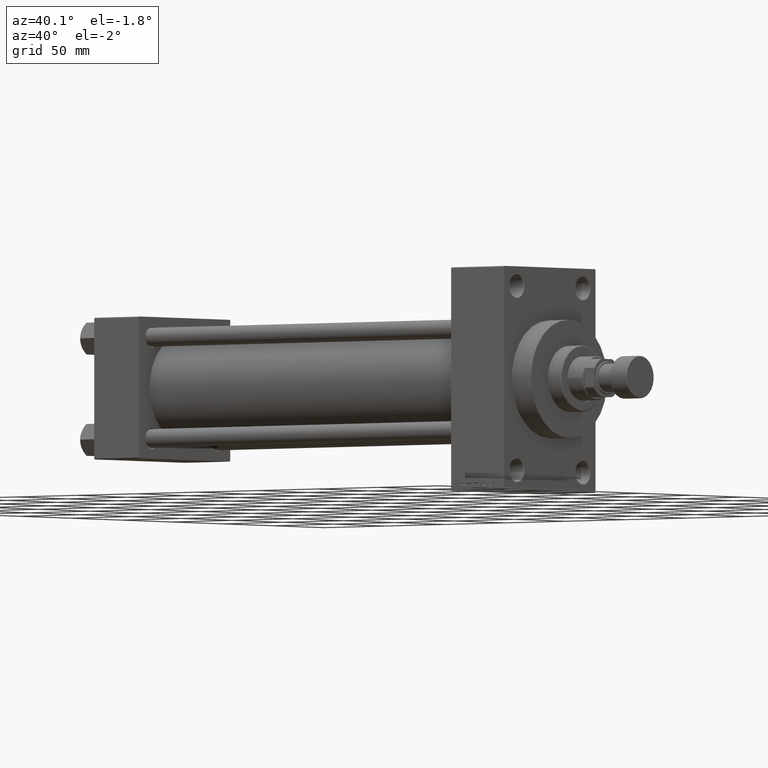
[diagram: clean part render]
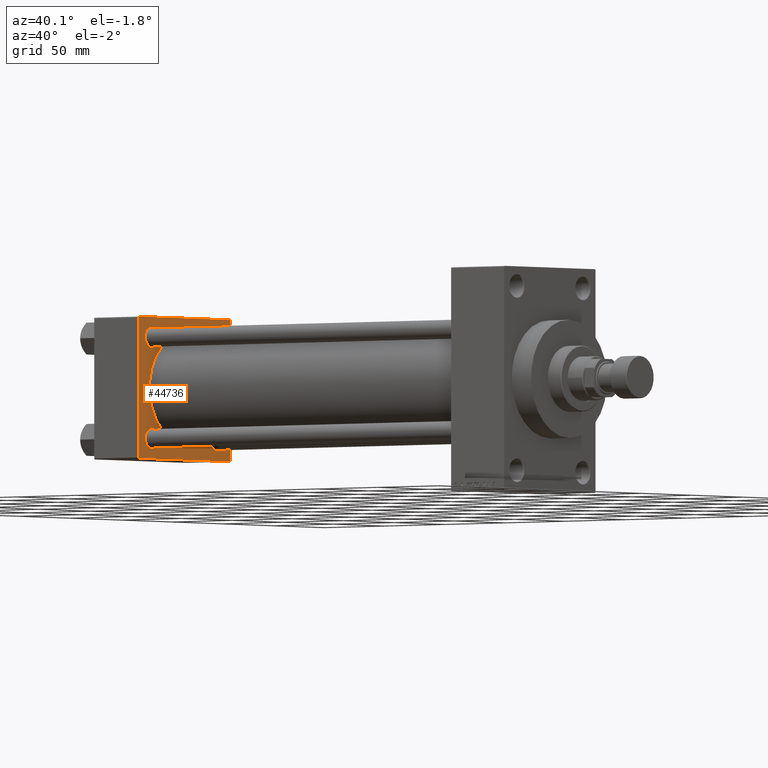
[diagram: same view with one face highlighted and labeled with its STEP entity id]
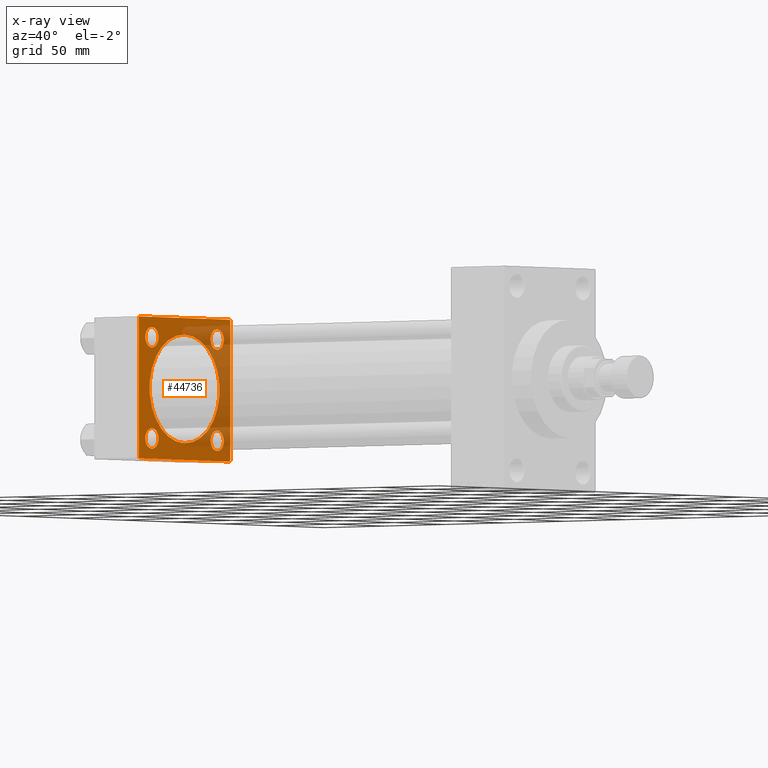
[diagram: x-ray of the same camera — body ghosted, the highlighted face saturated]
A machine part, auxiliary view. The second image highlights one B-rep face of the part: STEP entity #44736.
The next image is the same camera in x-ray: the body ghosted, the highlighted face saturated — about 35% of this face is hidden behind the body in this view.
In plain terms, the highlighted planar face has unit normal (-1, 0, 0).
Its self-contained STEP definition (entity closure, byte-faithful):
#347 = CIRCLE ( 'NONE', #12316, 6.500000000000061284 ) ;
#395 = DIRECTION ( 'NONE',  ( 0.000000000000000000, 0.000000000000000000, 1.000000000000000000 ) ) ;
#661 = VERTEX_POINT ( 'NONE', #11232 ) ;
#864 = AXIS2_PLACEMENT_3D ( 'NONE', #4917, #4163, #395 ) ;
#1032 = CARTESIAN_POINT ( 'NONE',  ( 37.00000000000000000, 32.14999999999999147, 38.65000000000006963 ) ) ;
#1181 = EDGE_LOOP ( 'NONE', ( #41799, #31450 ) ) ;
#1231 = EDGE_CURVE ( 'NONE', #661, #21011, #20126, .T. ) ;
#1339 = EDGE_LOOP ( 'NONE', ( #36625, #13456, #7248, #29883, #11961, #2124, #30866, #2922 ) ) ;
#1925 = DIRECTION ( 'NONE',  ( -1.000000000000000000, 0.000000000000000000, -0.000000000000000000 ) ) ;
#2124 = ORIENTED_EDGE ( 'NONE', *, *, #1231, .T. ) ;
#2215 = FACE_BOUND ( 'NONE', #1181, .T. ) ;
#2452 = DIRECTION ( 'NONE',  ( 0.000000000000000000, 0.000000000000000000, 1.000000000000000000 ) ) ;
#2530 = CARTESIAN_POINT ( 'NONE',  ( 37.00000000000000000, 44.99999999999998579, -44.99999999999998579 ) ) ;
#2835 = VERTEX_POINT ( 'NONE', #42251 ) ;
#2877 = CARTESIAN_POINT ( 'NONE',  ( 37.00000000000000000, -32.14999999999997726, -32.15000000000001279 ) ) ;
#2922 = ORIENTED_EDGE ( 'NONE', *, *, #21064, .T. ) ;
#3206 = DIRECTION ( 'NONE',  ( -1.000000000000000000, 0.000000000000000000, -0.000000000000000000 ) ) ;
#3208 = VECTOR ( 'NONE', #24857, 1000.000000000000000 ) ;
#4163 = DIRECTION ( 'NONE',  ( -1.000000000000000000, 0.000000000000000000, -0.000000000000000000 ) ) ;
#4171 = CARTESIAN_POINT ( 'NONE',  ( 37.00000000000000000, -32.14999999999997726, 32.15000000000001279 ) ) ;
#4537 = VECTOR ( 'NONE', #44574, 1000.000000000000000 ) ;
#4917 = CARTESIAN_POINT ( 'NONE',  ( 37.00000000000000000, 32.14999999999999147, 32.15000000000000568 ) ) ;
#5217 = CARTESIAN_POINT ( 'NONE',  ( 37.00000000000000000, 44.99999999999998579, -44.49999999999998579 ) ) ;
#5374 = AXIS2_PLACEMENT_3D ( 'NONE', #9165, #29050, #33082 ) ;
#5867 = CARTESIAN_POINT ( 'NONE',  ( 36.99999999999997868, -2.602085213965210642E-15, 34.50000000000000000 ) ) ;
#5950 = CARTESIAN_POINT ( 'NONE',  ( 37.00000000000000000, -44.49999999999998579, -45.00000000000000000 ) ) ;
#6861 = VERTEX_POINT ( 'NONE', #40498 ) ;
#6996 = VERTEX_POINT ( 'NONE', #16049 ) ;
#7248 = ORIENTED_EDGE ( 'NONE', *, *, #17431, .F. ) ;
#8180 = ORIENTED_EDGE ( 'NONE', *, *, #48417, .T. ) ;
#8703 = DIRECTION ( 'NONE',  ( 0.000000000000000000, -1.000000000000000000, -1.541976423090495387E-16 ) ) ;
#9165 = CARTESIAN_POINT ( 'NONE',  ( 37.00000000000000000, 32.14999999999999147, 32.15000000000000568 ) ) ;
#9284 = CARTESIAN_POINT ( 'NONE',  ( 37.00000000000000000, -32.14999999999997726, -25.64999999999994884 ) ) ;
#9686 = VERTEX_POINT ( 'NONE', #13573 ) ;
#10001 = CIRCLE ( 'NONE', #25322, 6.500000000000061284 ) ;
#10003 = FACE_BOUND ( 'NONE', #13735, .T. ) ;
#10052 = CARTESIAN_POINT ( 'NONE',  ( 37.00000000000000000, -32.14999999999997726, -32.15000000000001279 ) ) ;
#10084 = LINE ( 'NONE', #2530, #4537 ) ;
#10438 = DIRECTION ( 'NONE',  ( 0.000000000000000000, 0.000000000000000000, 1.000000000000000000 ) ) ;
#10458 = EDGE_CURVE ( 'NONE', #2835, #10953, #10084, .T. ) ;
#10880 = DIRECTION ( 'NONE',  ( 0.000000000000000000, -0.7071067811865474617, 0.7071067811865474617 ) ) ;
#10900 = DIRECTION ( 'NONE',  ( 1.000000000000000000, -0.000000000000000000, 0.000000000000000000 ) ) ;
#10953 = VERTEX_POINT ( 'NONE', #11487 ) ;
#11135 = CARTESIAN_POINT ( 'NONE',  ( 37.00000000000000000, 44.49999999999998579, 45.00000000000001421 ) ) ;
#11225 = VERTEX_POINT ( 'NONE', #5867 ) ;
#11232 = CARTESIAN_POINT ( 'NONE',  ( 37.00000000000000000, -44.49999999999995737, 45.00000000000000000 ) ) ;
#11333 = CIRCLE ( 'NONE', #13744, 6.500000000000061284 ) ;
#11403 = CIRCLE ( 'NONE', #27524, 34.50000000000000000 ) ;
#11487 = CARTESIAN_POINT ( 'NONE',  ( 37.00000000000000000, -44.49999999999995737, -45.00000000000000000 ) ) ;
#11961 = ORIENTED_EDGE ( 'NONE', *, *, #25162, .T. ) ;
#11980 = DIRECTION ( 'NONE',  ( -1.000000000000000000, 0.000000000000000000, -0.000000000000000000 ) ) ;
#12316 = AXIS2_PLACEMENT_3D ( 'NONE', #20576, #1925, #20818 ) ;
#13136 = VECTOR ( 'NONE', #29119, 1000.000000000000114 ) ;
#13456 = ORIENTED_EDGE ( 'NONE', *, *, #39826, .T. ) ;
#13466 = CARTESIAN_POINT ( 'NONE',  ( 37.00000000000000000, 44.99999999999998579, 44.50000000000001421 ) ) ;
#13506 = VERTEX_POINT ( 'NONE', #1032 ) ;
#13573 = CARTESIAN_POINT ( 'NONE',  ( 37.00000000000000000, -45.00000000000000000, -44.49999999999995737 ) ) ;
#13654 = EDGE_CURVE ( 'NONE', #33064, #35392, #48022, .T. ) ;
#13735 = EDGE_LOOP ( 'NONE', ( #48278, #8180 ) ) ;
#13744 = AXIS2_PLACEMENT_3D ( 'NONE', #4171, #11980, #46458 ) ;
#14035 = DIRECTION ( 'NONE',  ( -1.000000000000000000, 0.000000000000000000, -0.000000000000000000 ) ) ;
#15507 = CARTESIAN_POINT ( 'NONE',  ( 37.00000000000000000, 32.14999999999999147, -38.65000000000006963 ) ) ;
#16049 = CARTESIAN_POINT ( 'NONE',  ( 37.00000000000000000, 32.14999999999999147, 25.64999999999994529 ) ) ;
#16817 = ORIENTED_EDGE ( 'NONE', *, *, #43386, .T. ) ;
#16912 = VERTEX_POINT ( 'NONE', #15507 ) ;
#17431 = EDGE_CURVE ( 'NONE', #31871, #6861, #26212, .T. ) ;
#17715 = EDGE_LOOP ( 'NONE', ( #16817, #37568 ) ) ;
#18109 = VERTEX_POINT ( 'NONE', #29273 ) ;
#18315 = PLANE ( 'NONE',  #29352 ) ;
#18475 = DIRECTION ( 'NONE',  ( 0.000000000000000000, 0.000000000000000000, 1.000000000000000000 ) ) ;
#18593 = EDGE_LOOP ( 'NONE', ( #39712, #34526 ) ) ;
#19943 = CARTESIAN_POINT ( 'NONE',  ( 37.00000000000000000, -32.14999999999997726, 38.65000000000007674 ) ) ;
#20126 = LINE ( 'NONE', #35996, #31710 ) ;
#20380 = VECTOR ( 'NONE', #10880, 1000.000000000000114 ) ;
#20409 = AXIS2_PLACEMENT_3D ( 'NONE', #25781, #10900, #18475 ) ;
#20576 = CARTESIAN_POINT ( 'NONE',  ( 37.00000000000000000, 32.14999999999999147, -32.15000000000000568 ) ) ;
#20793 = CARTESIAN_POINT ( 'NONE',  ( 37.00000000000000000, 44.99999999999998579, 45.00000000000001421 ) ) ;
#20818 = DIRECTION ( 'NONE',  ( 0.000000000000000000, 0.000000000000000000, 1.000000000000000000 ) ) ;
#20864 = DIRECTION ( 'NONE',  ( -0.000000000000000000, -0.7071067811865425767, -0.7071067811865524577 ) ) ;
#20946 = VECTOR ( 'NONE', #29505, 1000.000000000000000 ) ;
#21011 = VERTEX_POINT ( 'NONE', #31434 ) ;
#21064 = EDGE_CURVE ( 'NONE', #9686, #10953, #48447, .T. ) ;
#21090 = CARTESIAN_POINT ( 'NONE',  ( 36.99999999999997868, -2.602085213965210642E-15, 0.000000000000000000 ) ) ;
#21599 = FACE_BOUND ( 'NONE', #17715, .T. ) ;
#21644 = DIRECTION ( 'NONE',  ( 0.000000000000000000, 0.000000000000000000, 1.000000000000000000 ) ) ;
#21813 = LINE ( 'NONE', #40458, #3208 ) ;
#22085 = FACE_BOUND ( 'NONE', #18593, .T. ) ;
#22184 = EDGE_CURVE ( 'NONE', #48157, #32168, #33985, .T. ) ;
#23954 = DIRECTION ( 'NONE',  ( 1.000000000000000000, -0.000000000000000000, 0.000000000000000000 ) ) ;
#24857 = DIRECTION ( 'NONE',  ( 0.000000000000000000, 7.709882115452476934E-17, -1.000000000000000000 ) ) ;
#24911 = VECTOR ( 'NONE', #8703, 1000.000000000000000 ) ;
#25162 = EDGE_CURVE ( 'NONE', #31372, #661, #47200, .T. ) ;
#25187 = DIRECTION ( 'NONE',  ( -1.000000000000000000, 0.000000000000000000, -0.000000000000000000 ) ) ;
#25322 = AXIS2_PLACEMENT_3D ( 'NONE', #10052, #45020, #21644 ) ;
#25781 = CARTESIAN_POINT ( 'NONE',  ( 36.99999999999997868, -2.602085213965210642E-15, 0.000000000000000000 ) ) ;
#26212 = LINE ( 'NONE', #48588, #20946 ) ;
#26342 = AXIS2_PLACEMENT_3D ( 'NONE', #47809, #25187, #40549 ) ;
#27524 = AXIS2_PLACEMENT_3D ( 'NONE', #21090, #23954, #2452 ) ;
#29050 = DIRECTION ( 'NONE',  ( -1.000000000000000000, 0.000000000000000000, -0.000000000000000000 ) ) ;
#29119 = DIRECTION ( 'NONE',  ( -0.000000000000000000, 0.7071067811865474617, 0.7071067811865474617 ) ) ;
#29155 = FACE_BOUND ( 'NONE', #46185, .T. ) ;
#29273 = CARTESIAN_POINT ( 'NONE',  ( 37.00000000000000000, 32.14999999999999147, -25.64999999999994529 ) ) ;
#29352 = AXIS2_PLACEMENT_3D ( 'NONE', #36463, #14035, #48979 ) ;
#29505 = DIRECTION ( 'NONE',  ( 0.000000000000000000, 0.000000000000000000, -1.000000000000000000 ) ) ;
#29883 = ORIENTED_EDGE ( 'NONE', *, *, #37532, .T. ) ;
#30544 = EDGE_CURVE ( 'NONE', #21011, #9686, #21813, .T. ) ;
#30721 = EDGE_CURVE ( 'NONE', #6996, #13506, #44256, .T. ) ;
#30866 = ORIENTED_EDGE ( 'NONE', *, *, #30544, .T. ) ;
#30869 = CIRCLE ( 'NONE', #39719, 6.500000000000061284 ) ;
#31372 = VERTEX_POINT ( 'NONE', #49523 ) ;
#31434 = CARTESIAN_POINT ( 'NONE',  ( 37.00000000000000000, -45.00000000000000711, 44.49999999999997158 ) ) ;
#31450 = ORIENTED_EDGE ( 'NONE', *, *, #41000, .F. ) ;
#31710 = VECTOR ( 'NONE', #20864, 1000.000000000000114 ) ;
#31770 = EDGE_CURVE ( 'NONE', #35392, #33064, #11333, .T. ) ;
#31871 = VERTEX_POINT ( 'NONE', #13466 ) ;
#32168 = VERTEX_POINT ( 'NONE', #45326 ) ;
#32419 = LINE ( 'NONE', #5217, #13136 ) ;
#32915 = ORIENTED_EDGE ( 'NONE', *, *, #13654, .T. ) ;
#33064 = VERTEX_POINT ( 'NONE', #19943 ) ;
#33082 = DIRECTION ( 'NONE',  ( 0.000000000000000000, 0.000000000000000000, 1.000000000000000000 ) ) ;
#33193 = FACE_OUTER_BOUND ( 'NONE', #1339, .T. ) ;
#33845 = CARTESIAN_POINT ( 'NONE',  ( 36.99999999999997868, 1.622946243093158675E-15, -34.50000000000000000 ) ) ;
#33985 = CIRCLE ( 'NONE', #41190, 6.500000000000061284 ) ;
#34438 = EDGE_CURVE ( 'NONE', #11225, #42133, #11403, .T. ) ;
#34526 = ORIENTED_EDGE ( 'NONE', *, *, #38359, .T. ) ;
#35392 = VERTEX_POINT ( 'NONE', #42330 ) ;
#35996 = CARTESIAN_POINT ( 'NONE',  ( 37.00000000000000000, -45.00000000000000711, 44.49999999999997158 ) ) ;
#36193 = DIRECTION ( 'NONE',  ( 0.000000000000000000, 0.7071067811865474617, -0.7071067811865474617 ) ) ;
#36463 = CARTESIAN_POINT ( 'NONE',  ( 37.00000000000000000, 0.000000000000000000, 0.000000000000000000 ) ) ;
#36625 = ORIENTED_EDGE ( 'NONE', *, *, #10458, .F. ) ;
#36751 = CIRCLE ( 'NONE', #5374, 6.500000000000061284 ) ;
#37481 = DIRECTION ( 'NONE',  ( 0.000000000000000000, 0.000000000000000000, 1.000000000000000000 ) ) ;
#37532 = EDGE_CURVE ( 'NONE', #31871, #31372, #49118, .T. ) ;
#37568 = ORIENTED_EDGE ( 'NONE', *, *, #22184, .T. ) ;
#38359 = EDGE_CURVE ( 'NONE', #18109, #16912, #30869, .T. ) ;
#38915 = EDGE_CURVE ( 'NONE', #16912, #18109, #347, .T. ) ;
#39712 = ORIENTED_EDGE ( 'NONE', *, *, #38915, .T. ) ;
#39719 = AXIS2_PLACEMENT_3D ( 'NONE', #49506, #3206, #37481 ) ;
#39826 = EDGE_CURVE ( 'NONE', #2835, #6861, #32419, .T. ) ;
#40458 = CARTESIAN_POINT ( 'NONE',  ( 37.00000000000000000, -45.00000000000000711, 45.00000000000000000 ) ) ;
#40498 = CARTESIAN_POINT ( 'NONE',  ( 37.00000000000000000, 44.99999999999998579, -44.49999999999995737 ) ) ;
#40549 = DIRECTION ( 'NONE',  ( 0.000000000000000000, 0.000000000000000000, 1.000000000000000000 ) ) ;
#41000 = EDGE_CURVE ( 'NONE', #42133, #11225, #49308, .T. ) ;
#41190 = AXIS2_PLACEMENT_3D ( 'NONE', #2877, #48668, #10438 ) ;
#41628 = ORIENTED_EDGE ( 'NONE', *, *, #31770, .T. ) ;
#41799 = ORIENTED_EDGE ( 'NONE', *, *, #34438, .F. ) ;
#42133 = VERTEX_POINT ( 'NONE', #33845 ) ;
#42251 = CARTESIAN_POINT ( 'NONE',  ( 37.00000000000000000, 44.49999999999998579, -44.99999999999998579 ) ) ;
#42330 = CARTESIAN_POINT ( 'NONE',  ( 37.00000000000000000, -32.14999999999997726, 25.64999999999994884 ) ) ;
#43386 = EDGE_CURVE ( 'NONE', #32168, #48157, #10001, .T. ) ;
#43564 = VECTOR ( 'NONE', #36193, 1000.000000000000114 ) ;
#44256 = CIRCLE ( 'NONE', #864, 6.500000000000061284 ) ;
#44574 = DIRECTION ( 'NONE',  ( 0.000000000000000000, -1.000000000000000000, -1.541976423090495633E-16 ) ) ;
#44736 = ADVANCED_FACE ( 'NONE', ( #21599, #22085, #29155, #10003, #2215, #33193 ), #18315, .F. ) ;
#45020 = DIRECTION ( 'NONE',  ( -1.000000000000000000, 0.000000000000000000, -0.000000000000000000 ) ) ;
#45326 = CARTESIAN_POINT ( 'NONE',  ( 37.00000000000000000, -32.14999999999997726, -38.65000000000007674 ) ) ;
#46185 = EDGE_LOOP ( 'NONE', ( #41628, #32915 ) ) ;
#46458 = DIRECTION ( 'NONE',  ( 0.000000000000000000, 0.000000000000000000, 1.000000000000000000 ) ) ;
#47200 = LINE ( 'NONE', #20793, #24911 ) ;
#47809 = CARTESIAN_POINT ( 'NONE',  ( 37.00000000000000000, -32.14999999999997726, 32.15000000000001279 ) ) ;
#48022 = CIRCLE ( 'NONE', #26342, 6.500000000000061284 ) ;
#48157 = VERTEX_POINT ( 'NONE', #9284 ) ;
#48278 = ORIENTED_EDGE ( 'NONE', *, *, #30721, .T. ) ;
#48417 = EDGE_CURVE ( 'NONE', #13506, #6996, #36751, .T. ) ;
#48447 = LINE ( 'NONE', #5950, #43564 ) ;
#48588 = CARTESIAN_POINT ( 'NONE',  ( 37.00000000000000000, 44.99999999999998579, 45.00000000000001421 ) ) ;
#48668 = DIRECTION ( 'NONE',  ( -1.000000000000000000, 0.000000000000000000, -0.000000000000000000 ) ) ;
#48979 = DIRECTION ( 'NONE',  ( -0.000000000000000000, 0.000000000000000000, 1.000000000000000000 ) ) ;
#49118 = LINE ( 'NONE', #11135, #20380 ) ;
#49308 = CIRCLE ( 'NONE', #20409, 34.50000000000000000 ) ;
#49506 = CARTESIAN_POINT ( 'NONE',  ( 37.00000000000000000, 32.14999999999999147, -32.15000000000000568 ) ) ;
#49523 = CARTESIAN_POINT ( 'NONE',  ( 37.00000000000000000, 44.49999999999998579, 45.00000000000001421 ) ) ;